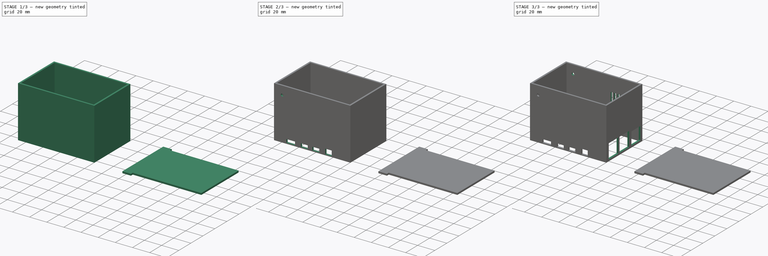
[diagram: build sequence overview — one tinted view per stage of 3, left to right]
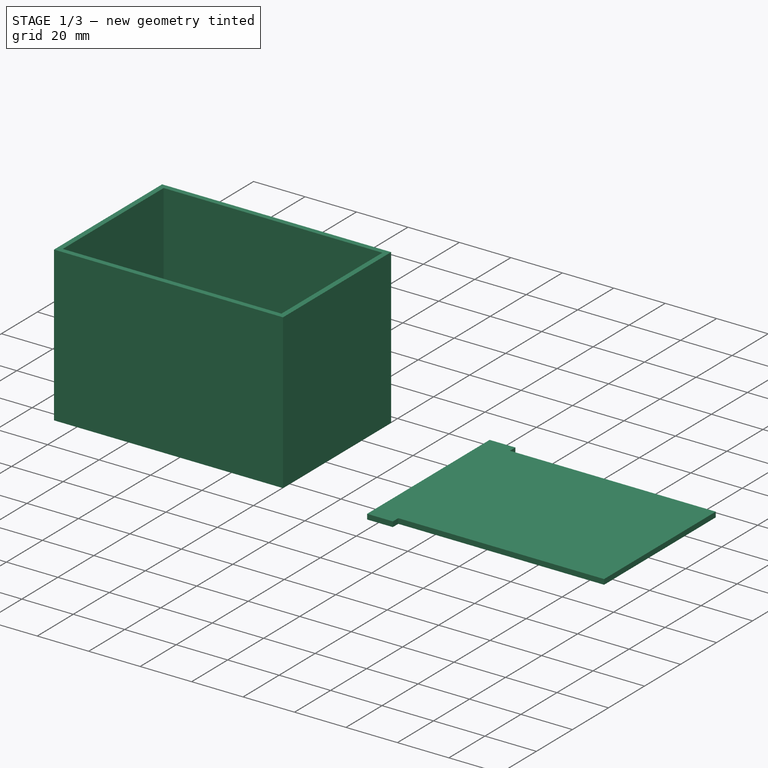
[diagram: stage 1 of 3 — iso view after this stage's code; geometry added in this stage tinted green]
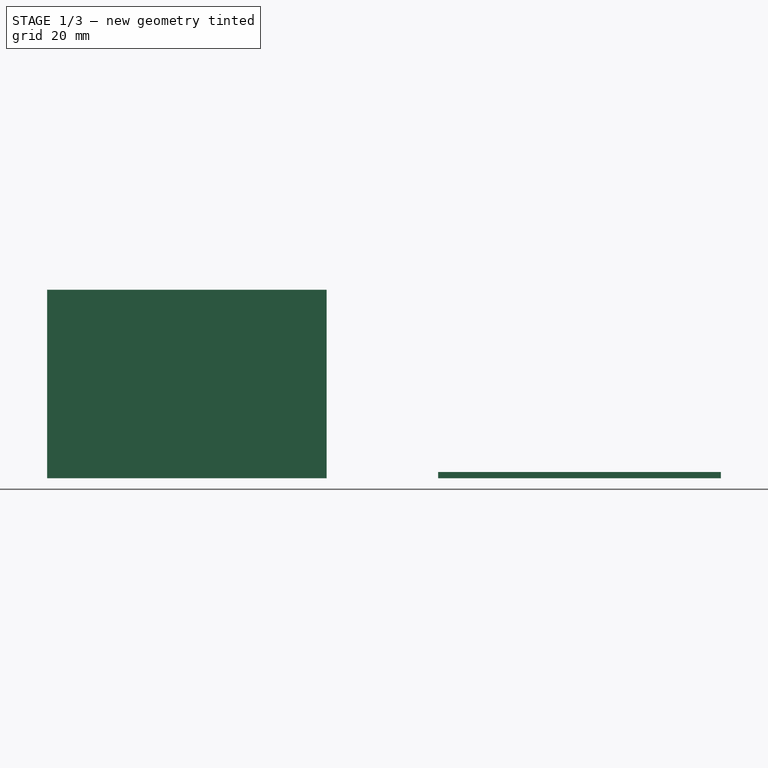
[diagram: stage 1 of 3 — front view after this stage's code; geometry added in this stage tinted green]
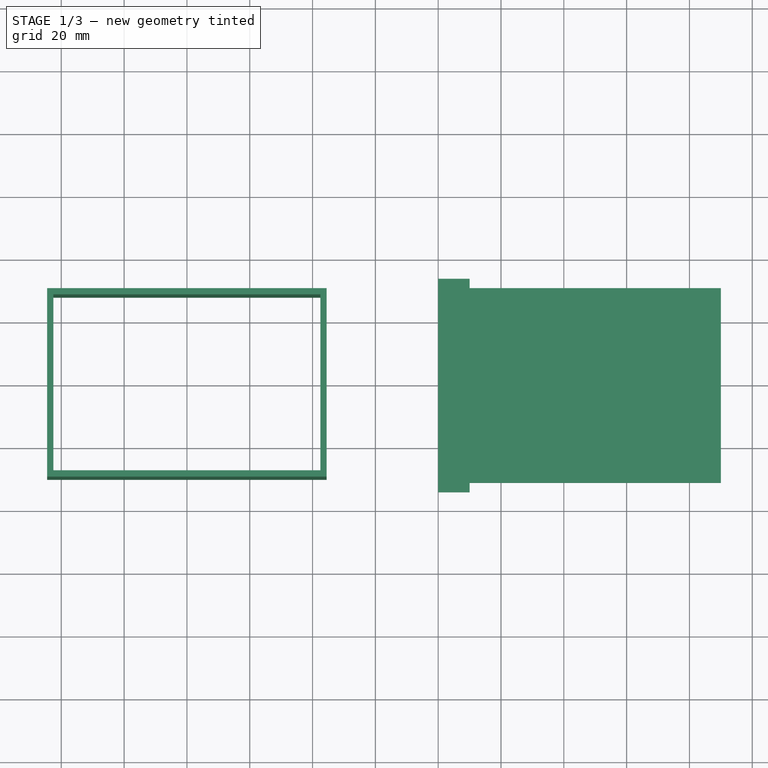
[diagram: stage 1 of 3 — top view after this stage's code; geometry added in this stage tinted green]
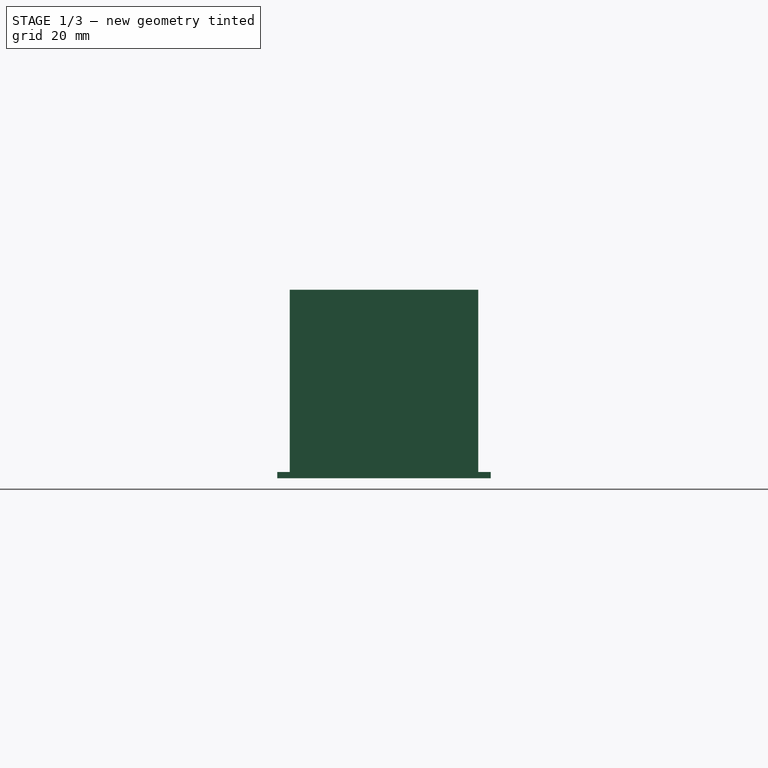
[diagram: stage 1 of 3 — right view after this stage's code; geometry added in this stage tinted green]
FCSTD DOCUMENT  (FreeCAD 0.19R24267 +99 (Git))
Label: case_spi4_v1
License: All rights reserved
LicenseURL: http://en.wikipedia.org/wiki/All_rights_reserved
objects: Sketcher::SketchObject×5, PartDesign::Pocket×3, PartDesign::Pad×2, PartDesign::Body×2
note: 17 computed .brp shape members not serialized (recipe doc carries the construction recipe); baked Part::Feature solids carry a one-line shape summary decoded from their .brp

FEATURE [Sketcher::SketchObject] Sketch  label="Sketch_base"
  FullyConstrained = true
  MapMode = 5
  Support = -> [XY_Plane]
  sketch-geometry (9):
    g0: LineSegment StartX=-42.5 StartY=28 StartZ=0 EndX=42.5 EndY=28 EndZ=0
    g1: LineSegment StartX=42.5 StartY=28 StartZ=0 EndX=42.5 EndY=-28 EndZ=0
    g2: LineSegment StartX=42.5 StartY=-28 StartZ=0 EndX=-42.5 EndY=-28 EndZ=0
    g3: LineSegment StartX=-42.5 StartY=-28 StartZ=0 EndX=-42.5 EndY=28 EndZ=0
    g4: LineSegment StartX=-44.5 StartY=30 StartZ=0 EndX=44.5 EndY=30 EndZ=0
    g5: LineSegment StartX=44.5 StartY=30 StartZ=0 EndX=44.5 EndY=-30 EndZ=0
    g6: LineSegment StartX=44.5 StartY=-30 StartZ=0 EndX=-44.5 EndY=-30 EndZ=0
    g7: LineSegment StartX=-44.5 StartY=-30 StartZ=0 EndX=-44.5 EndY=30 EndZ=0
    g8: GeomPoint X=0 Y=0 Z=0
  constraints (21):
    c: Coincident(g0,g1)
    c: Coincident(g1,g2)
    c: Coincident(g2,g3)
    c: Coincident(g3,g0)
    c: Distance(g1) = 56  'latime'
    c: Distance(g0) = 85  'lungime'
    c: Equal(g0,g2)
    c: Equal(g1,g3)
    c: Coincident(g4,g5)
    c: Coincident(g5,g6)
    c: Coincident(g6,g7)
    c: Coincident(g7,g4)
    c: Horizontal(g6)
    c: Vertical(g7)
    c: DistanceX(g0,g4) = 2  'latime_perete2'
    c: DistanceY(g0,g4) = 2  'latime_perete'
    c: Coincident(g8,g-1)
    c: Symmetric(g0,g0,g-2)
    c: Symmetric(g4,g4,g-2)
    c: Symmetric(g5,g4,g-1)
    c: Symmetric(g0,g1,g-1)
FEATURE [PartDesign::Pad] Pad
  Direction = (1,1,1)
  Length = 60
  Length2 = 100
  Profile = -> Sketch
  Type = 0
FEATURE [PartDesign::Body] Body  label="pereti_carcasa"
  Group = -> [Sketch,Pad,Sketch001,Pocket,Sketch002,Pocket001,Sketch003,Pocket002]
  Origin = -> Origin
  Tip = -> Pocket002
FEATURE [Sketcher::SketchObject] Sketch004
  FullyConstrained = true
  MapMode = 5
  Support = -> [XY_Plane001]
  sketch-geometry (12):
    g0: LineSegment StartX=80 StartY=31 StartZ=0 EndX=170 EndY=31 EndZ=0
    g1: LineSegment StartX=170 StartY=31 StartZ=0 EndX=170 EndY=-31 EndZ=0
    g2: LineSegment StartX=170 StartY=-31 StartZ=0 EndX=80 EndY=-31 EndZ=0
    g3: LineSegment StartX=80 StartY=-31 StartZ=0 EndX=80 EndY=31 EndZ=0
    g4: LineSegment StartX=80 StartY=31 StartZ=0 EndX=90 EndY=31 EndZ=0
    g5: LineSegment StartX=90 StartY=31 StartZ=0 EndX=90 EndY=34 EndZ=0
    g6: LineSegment StartX=90 StartY=34 StartZ=0 EndX=80 EndY=34 EndZ=0
    g7: LineSegment StartX=80 StartY=34 StartZ=0 EndX=80 EndY=31 EndZ=0
    g8: LineSegment StartX=80 StartY=-31 StartZ=0 EndX=90 EndY=-31 EndZ=0
    g9: LineSegment StartX=90 StartY=-31 StartZ=0 EndX=90 EndY=-34 EndZ=0
    g10: LineSegment StartX=90 StartY=-34 StartZ=0 EndX=80 EndY=-34 EndZ=0
    g11: LineSegment StartX=80 StartY=-34 StartZ=0 EndX=80 EndY=-31 EndZ=0
  constraints (31):
    c: Coincident(g0,g1)
    c: Coincident(g1,g2)
    c: Coincident(g2,g3)
    c: Coincident(g3,g0)
    c: Horizontal(g0)
    c: Horizontal(g2)
    c: Vertical(g1)
    c: Distance(g0) = 90  'capac_l'
    c: Distance(g1) = 62  'capac_L'
    c: DistanceX(g-1,g0) = 80
    c: Symmetric(g0,g2,g-1)
    c: Coincident(g4,g5)
    c: Coincident(g5,g6)
    c: Coincident(g6,g7)
    c: Coincident(g7,g4)
    c: Horizontal(g4)
    c: Horizontal(g6)
    c: Vertical(g5)
    c: Vertical(g7)
    c: Coincident(g4,g0)
    c: Distance(g5) = 3
    c: Distance(g6) = 10
    c: Coincident(g8,g9)
    c: Coincident(g9,g10)
    c: Coincident(g10,g11)
    c: Coincident(g11,g8)
    c: Horizontal(g8)
    c: Vertical(g9)
    c: Coincident(g8,g2)
    c: Symmetric(g10,g6,g-1)
    c: Symmetric(g5,g9,g-1)
FEATURE [PartDesign::Pad] Pad001
  Direction = (1,1,1)
  Length = 2
  Length2 = 100
  Profile = -> Sketch004
  Type = 0
FEATURE [PartDesign::Body] Body001  label="lid"
  Group = -> [Sketch004,Pad001]
  Origin = -> Origin001
  Tip = -> Pad001
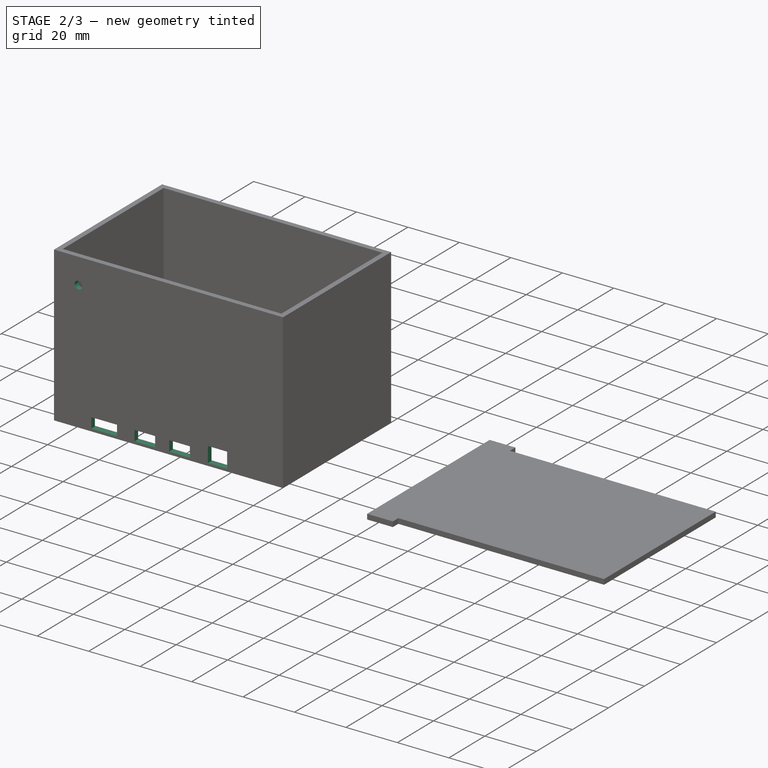
[diagram: stage 2 of 3 — iso view after this stage's code; geometry added in this stage tinted green]
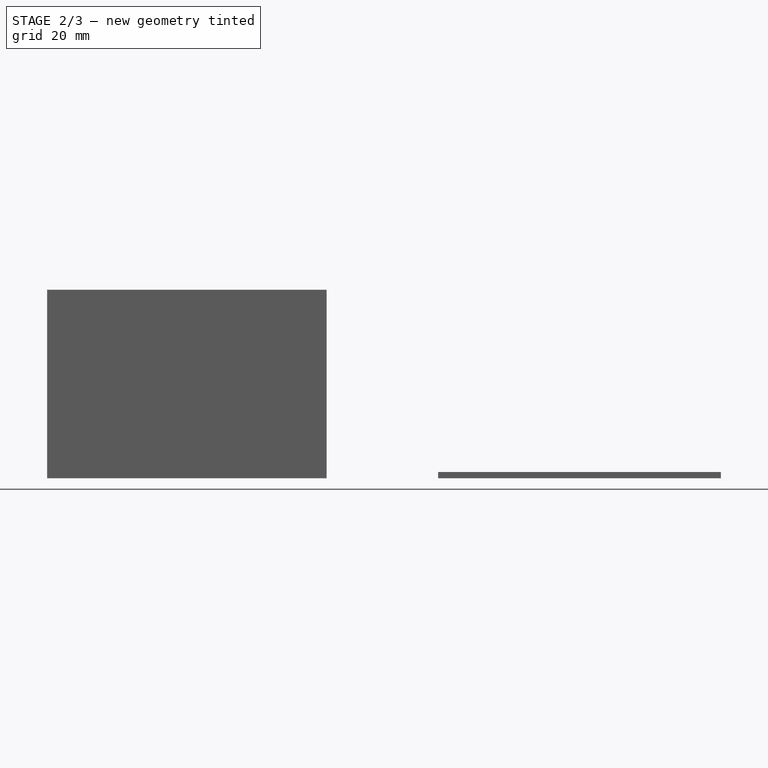
[diagram: stage 2 of 3 — front view after this stage's code; geometry added in this stage tinted green]
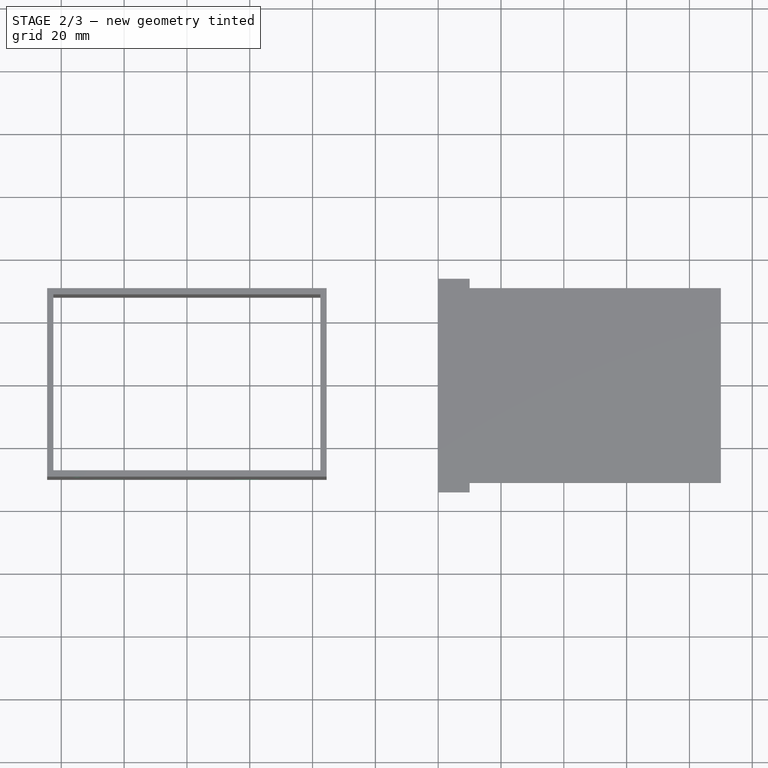
[diagram: stage 2 of 3 — top view after this stage's code; geometry added in this stage tinted green]
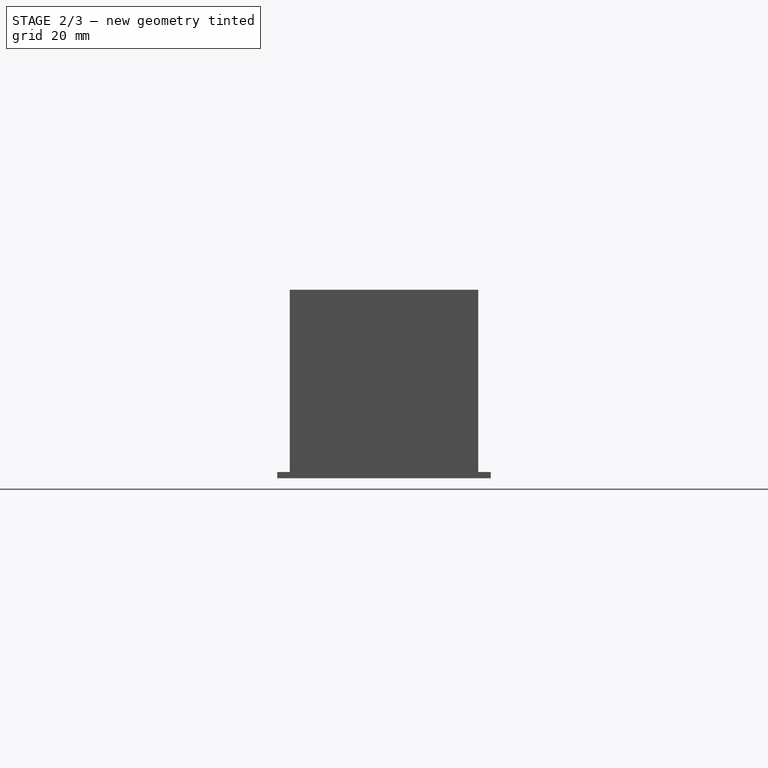
[diagram: stage 2 of 3 — right view after this stage's code; geometry added in this stage tinted green]
FEATURE [Sketcher::SketchObject] Sketch001  label="Sketch_IO"
  FullyConstrained = true
  MapMode = 5
  Placement = pos=(0,-30,0) rot=(1,0,0;1.5708rad)
  Support = -> [Pad]
  sketch-geometry (17):
    g0: LineSegment StartX=-30 StartY=5 StartZ=0 EndX=-20 EndY=5 EndZ=0
    g1: LineSegment StartX=-20 StartY=5 StartZ=0 EndX=-20 EndY=1 EndZ=0
    g2: LineSegment StartX=-20 StartY=1 StartZ=0 EndX=-30 EndY=1 EndZ=0
    g3: LineSegment StartX=-30 StartY=1 StartZ=0 EndX=-30 EndY=5 EndZ=0
    g4: LineSegment StartX=-13.2 StartY=5 StartZ=0 EndX=-5.2 EndY=5 EndZ=0
    g5: LineSegment StartX=-5.2 StartY=5 StartZ=0 EndX=-5.2 EndY=1 EndZ=0
    g6: LineSegment StartX=-5.2 StartY=1 StartZ=0 EndX=-13.2 EndY=1 EndZ=0
    g7: LineSegment StartX=-13.2 StartY=1 StartZ=0 EndX=-13.2 EndY=5 EndZ=0
    g8: LineSegment StartX=0.3 StartY=5 StartZ=0 EndX=8.3 EndY=5 EndZ=0
    g9: LineSegment StartX=8.3 StartY=5 StartZ=0 EndX=8.3 EndY=1 EndZ=0
    g10: LineSegment StartX=8.3 StartY=1 StartZ=0 EndX=0.3 EndY=1 EndZ=0
    g11: LineSegment StartX=0.3 StartY=1 StartZ=0 EndX=0.3 EndY=5 EndZ=0
    g12: LineSegment StartX=15.3 StartY=7 StartZ=0 EndX=22.8 EndY=7 EndZ=0
    g13: LineSegment StartX=22.8 StartY=7 StartZ=0 EndX=22.8 EndY=1 EndZ=0
    g14: LineSegment StartX=22.8 StartY=1 StartZ=0 EndX=15.3 EndY=1 EndZ=0
    g15: LineSegment StartX=15.3 StartY=1 StartZ=0 EndX=15.3 EndY=7 EndZ=0
    g16: Circle CenterX=-35 CenterY=50 CenterZ=0 NormalX=0 NormalY=0 NormalZ=1 AngleXU=0 Radius=1.5
  constraints (51):
    c: Coincident(g0,g1)
    c: Coincident(g1,g2)
    c: Coincident(g2,g3)
    c: Coincident(g3,g0)
    c: Horizontal(g0)
    c: Horizontal(g2)
    c: Vertical(g1)
    c: Vertical(g3)
    c: Coincident(g4,g5)
    c: Coincident(g5,g6)
    c: Coincident(g6,g7)
    c: Coincident(g7,g4)
    c: Horizontal(g4)
    c: Horizontal(g6)
    c: Vertical(g5)
    c: Vertical(g7)
    c: Coincident(g8,g9)
    c: Coincident(g9,g10)
    c: Coincident(g10,g11)
    c: Coincident(g11,g8)
    c: Horizontal(g8)
    c: Horizontal(g10)
    c: Vertical(g9)
    c: Vertical(g11)
    c: Coincident(g12,g13)
    c: Coincident(g13,g14)
    c: Coincident(g14,g15)
    c: Coincident(g15,g12)
    c: Horizontal(g12)
    c: Horizontal(g14)
    c: Vertical(g13)
    c: Vertical(g15)
    c: Distance(g1) = 4
    c: Distance(g5) = 4
    c: Distance(g11) = 4
    c: Distance(g15) = 6
    c: Distance(g4) = 8
    c: Distance(g8) = 8
    c: DistanceX(g4,g8) = 13.5
    c: DistanceX(g0,g4) = 14.8
    c: Distance(g0) = 10
    c: Distance(g12) = 7.5
    c: DistanceX(g8,g12) = 14.5
    c: DistanceY(g1,g6) = 0
    c: DistanceY(g5,g10) = 0
    c: DistanceY(g9,g14) = 0
    c: DistanceY(g-1,g9) = 1  'h_porturi'
    c: Diameter(g16) = 3
    c: DistanceX(g16,g-1) = 35
    c: DistanceY(g-1,g16) = 50
    c: DistanceX(g2,g-1) = 30
FEATURE [PartDesign::Pocket] Pocket
  BaseFeature = -> Pad
  Length = 5
  Length2 = 100
  Profile = -> Sketch001
  Type = 0
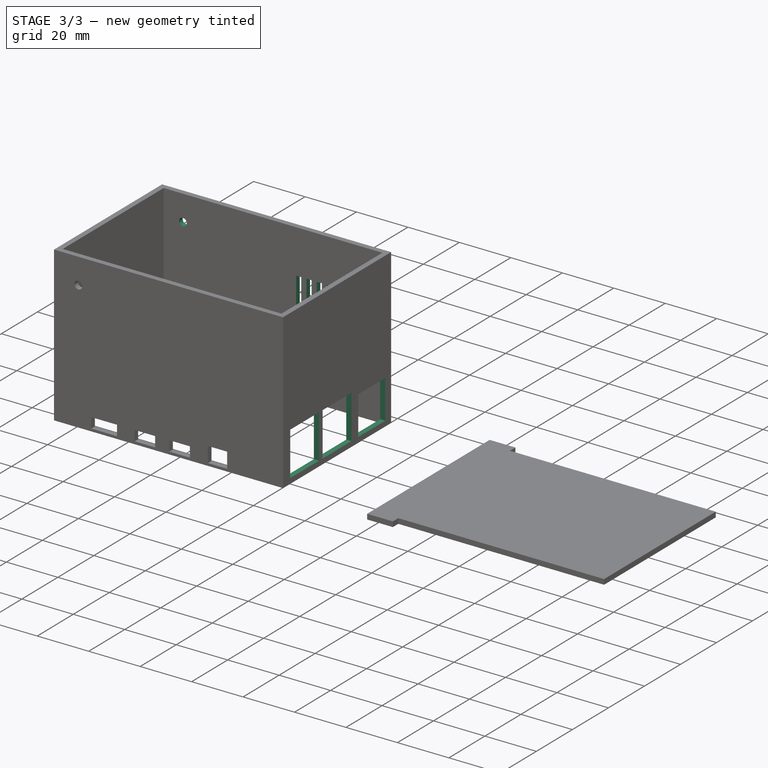
[diagram: stage 3 of 3 — iso view after this stage's code; geometry added in this stage tinted green]
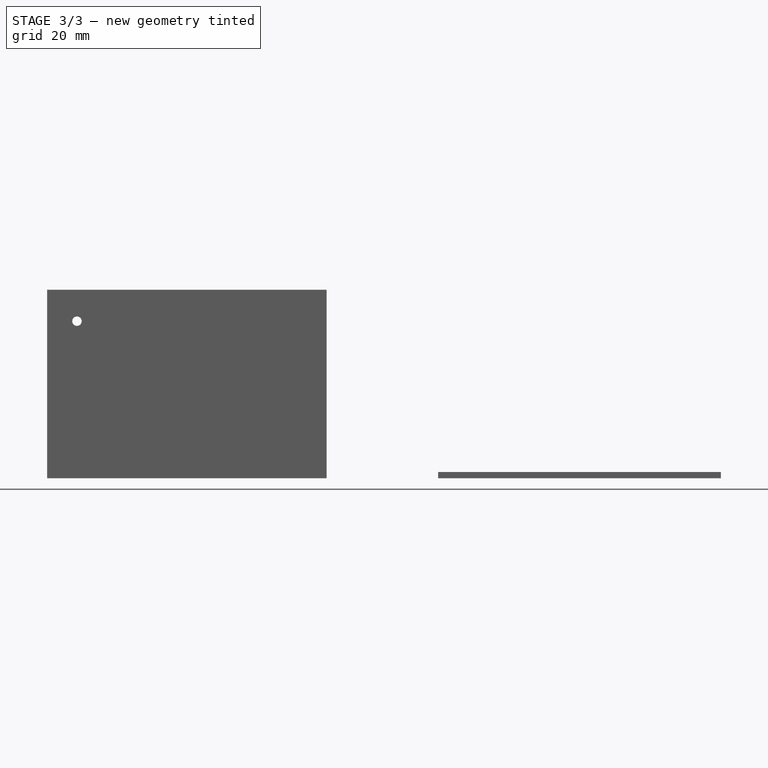
[diagram: stage 3 of 3 — front view after this stage's code; geometry added in this stage tinted green]
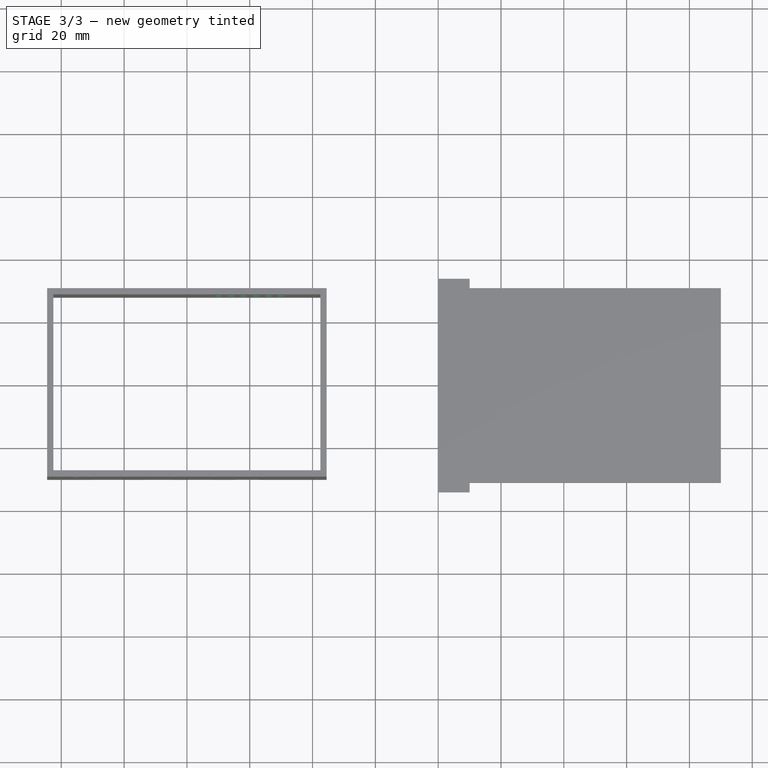
[diagram: stage 3 of 3 — top view after this stage's code; geometry added in this stage tinted green]
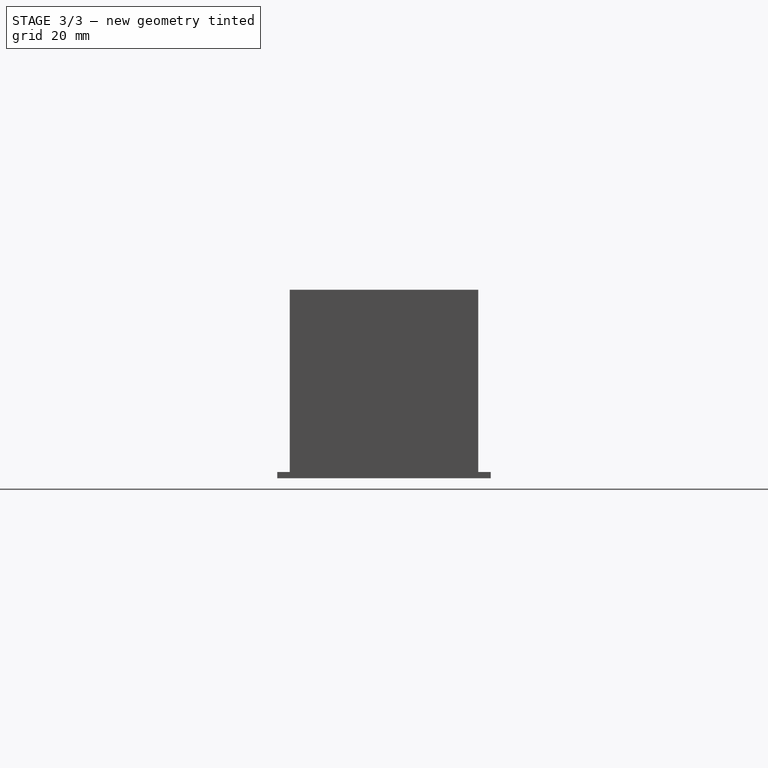
[diagram: stage 3 of 3 — right view after this stage's code; geometry added in this stage tinted green]
FEATURE [Sketcher::SketchObject] Sketch002  label="Sketch_USB"
  FullyConstrained = true
  MapMode = 5
  Placement = pos=(44.5,0,0) rot=(0.57735,0.57735,0.57735;2.0944rad)
  Support = -> [Pocket]
  sketch-geometry (12):
    g0: LineSegment StartX=-26 StartY=19 StartZ=0 EndX=-10 EndY=19 EndZ=0
    g1: LineSegment StartX=-10 StartY=19 StartZ=0 EndX=-10 EndY=2 EndZ=0
    g2: LineSegment StartX=-10 StartY=2 StartZ=0 EndX=-26 EndY=2 EndZ=0
    g3: LineSegment StartX=-26 StartY=2 StartZ=0 EndX=-26 EndY=19 EndZ=0
    g4: LineSegment StartX=-8 StartY=19 StartZ=0 EndX=8 EndY=19 EndZ=0
    g5: LineSegment StartX=8 StartY=19 StartZ=0 EndX=8 EndY=2 EndZ=0
    g6: LineSegment StartX=8 StartY=2 StartZ=0 EndX=-8 EndY=2 EndZ=0
    g7: LineSegment StartX=-8 StartY=2 StartZ=0 EndX=-8 EndY=19 EndZ=0
    g8: LineSegment StartX=11.75 StartY=17 StartZ=0 EndX=26.75 EndY=17 EndZ=0
    g9: LineSegment StartX=26.75 StartY=17 StartZ=0 EndX=26.75 EndY=2 EndZ=0
    g10: LineSegment StartX=26.75 StartY=2 StartZ=0 EndX=11.75 EndY=2 EndZ=0
    g11: LineSegment StartX=11.75 StartY=2 StartZ=0 EndX=11.75 EndY=17 EndZ=0
  constraints (36):
    c: Coincident(g0,g1)
    c: Coincident(g1,g2)
    c: Coincident(g2,g3)
    c: Coincident(g3,g0)
    c: Horizontal(g0)
    c: Horizontal(g2)
    c: Vertical(g1)
    c: Vertical(g3)
    c: Coincident(g4,g5)
    c: Coincident(g5,g6)
    c: Coincident(g6,g7)
    c: Coincident(g7,g4)
    c: Horizontal(g4)
    c: Horizontal(g6)
    c: Vertical(g5)
    c: Vertical(g7)
    c: Coincident(g8,g9)
    c: Coincident(g9,g10)
    c: Coincident(g10,g11)
    c: Coincident(g11,g8)
    c: Horizontal(g8)
    c: Horizontal(g10)
    c: Vertical(g9)
    c: Vertical(g11)
    c: DistanceY(g5,g10) = 0
    c: DistanceY(g1,g6) = 0
    c: Distance(g9) = 15
    c: Distance(g8) = 15
    c: Equal(g1,g7)
    c: Distance(g3) = 17  'USB_h'
    c: Equal(g4,g0)
    c: Distance(g0) = 16  'USB_l'
    c: DistanceX(g0,g4) = 18
    c: DistanceX(g4,g8) = 18.75
    c: DistanceX(g-1,g5) = 8
    c: DistanceY(g-1,g5) = 2
FEATURE [PartDesign::Pocket] Pocket001
  BaseFeature = -> Pocket
  Length = 5
  Length2 = 100
  Profile = -> Sketch002
  Type = 0
FEATURE [Sketcher::SketchObject] Sketch003  label="Sketch_vents"
  FullyConstrained = true
  MapMode = 5
  Placement = pos=(0,30,0) rot=(0,0.707107,0.707107;3.14159rad)
  Support = -> [Pocket001]
  sketch-geometry (34):
    g0: LineSegment StartX=-35 StartY=47 StartZ=0 EndX=-5 EndY=47 EndZ=0
    g1: LineSegment StartX=-5 StartY=47 StartZ=0 EndX=-5 EndY=17 EndZ=0
    g2: LineSegment StartX=-5 StartY=17 StartZ=0 EndX=-35 EndY=17 EndZ=0
    g3: LineSegment StartX=-35 StartY=17 StartZ=0 EndX=-35 EndY=47 EndZ=0
    g4: LineSegment StartX=-31 StartY=43 StartZ=0 EndX=-29 EndY=43 EndZ=0
    g5: LineSegment StartX=-29 StartY=43 StartZ=0 EndX=-29 EndY=21 EndZ=0
    g6: LineSegment StartX=-29 StartY=21 StartZ=0 EndX=-31 EndY=21 EndZ=0
    g7: LineSegment StartX=-31 StartY=21 StartZ=0 EndX=-31 EndY=43 EndZ=0
    g8: LineSegment StartX=-27 StartY=43 StartZ=0 EndX=-25 EndY=43 EndZ=0
    g9: LineSegment StartX=-25 StartY=43 StartZ=0 EndX=-25 EndY=21 EndZ=0
    g10: LineSegment StartX=-25 StartY=21 StartZ=0 EndX=-27 EndY=21 EndZ=0
    g11: LineSegment StartX=-27 StartY=21 StartZ=0 EndX=-27 EndY=43 EndZ=0
    g12: LineSegment StartX=-23 StartY=43 StartZ=0 EndX=-21 EndY=43 EndZ=0
    g13: LineSegment StartX=-21 StartY=43 StartZ=0 EndX=-21 EndY=21 EndZ=0
    g14: LineSegment StartX=-21 StartY=21 StartZ=0 EndX=-23 EndY=21 EndZ=0
    g15: LineSegment StartX=-23 StartY=21 StartZ=0 EndX=-23 EndY=43 EndZ=0
    g16: LineSegment StartX=-19 StartY=43 StartZ=0 EndX=-17 EndY=43 EndZ=0
    g17: LineSegment StartX=-17 StartY=43 StartZ=0 EndX=-17 EndY=21 EndZ=0
    g18: LineSegment StartX=-17 StartY=21 StartZ=0 EndX=-19 EndY=21 EndZ=0
    g19: LineSegment StartX=-19 StartY=21 StartZ=0 EndX=-19 EndY=43 EndZ=0
    g20: LineSegment StartX=-15 StartY=43 StartZ=0 EndX=-13 EndY=43 EndZ=0
    g21: LineSegment StartX=-13 StartY=43 StartZ=0 EndX=-13 EndY=21 EndZ=0
    g22: LineSegment StartX=-13 StartY=21 StartZ=0 EndX=-15 EndY=21 EndZ=0
    g23: LineSegment StartX=-15 StartY=21 StartZ=0 EndX=-15 EndY=43 EndZ=0
    g24: LineSegment StartX=-11 StartY=43 StartZ=0 EndX=-9 EndY=43 EndZ=0
    g25: LineSegment StartX=-9 StartY=43 StartZ=0 EndX=-9 EndY=21 EndZ=0
    g26: LineSegment StartX=-9 StartY=21 StartZ=0 EndX=-11 EndY=21 EndZ=0
    g27: LineSegment StartX=-11 StartY=21 StartZ=0 EndX=-11 EndY=43 EndZ=0
    g28: LineSegment StartX=-25 StartY=43 StartZ=0 EndX=-23 EndY=43 EndZ=0
    g29: LineSegment StartX=-29 StartY=43 StartZ=0 EndX=-27 EndY=43 EndZ=0
    g30: LineSegment StartX=-21 StartY=43 StartZ=0 EndX=-19 EndY=43 EndZ=0
    g31: LineSegment StartX=-17 StartY=43 StartZ=0 EndX=-15 EndY=43 EndZ=0
    g32: LineSegment StartX=-13 StartY=43 StartZ=0 EndX=-11 EndY=43 EndZ=0
    g33: Circle CenterX=35 CenterY=50 CenterZ=0 NormalX=0 NormalY=0 NormalZ=1 AngleXU=0 Radius=1.5
  constraints (97):
    c: Coincident(g0,g1)
    c: Coincident(g1,g2)
    c: Coincident(g2,g3)
    c: Coincident(g3,g0)
    c: Horizontal(g0)
    c: Horizontal(g2)
    c: Vertical(g1)
    c: Vertical(g3)
    c: Distance(g1) = 30
    c: Distance(g0) = 30
    c: Coincident(g4,g5)
    c: Coincident(g5,g6)
    c: Coincident(g6,g7)
    c: Coincident(g7,g4)
    c: Horizontal(g4)
    c: Horizontal(g6)
    c: Vertical(g5)
    c: Vertical(g7)
    c: Distance(g4) = 2
    c: Distance(g5) = 22
    c: Coincident(g8,g9)
    c: Coincident(g9,g10)
    c: Coincident(g10,g11)
    c: Coincident(g11,g8)
    c: Horizontal(g8)
    c: Horizontal(g10)
    c: Vertical(g9)
    c: Vertical(g11)
    c: Equal(g4,g8) = 2
    c: Equal(g5,g9) = 14
    c: Coincident(g12,g13)
    c: Coincident(g13,g14)
    c: Coincident(g14,g15)
    c: Coincident(g15,g12)
    c: Horizontal(g12)
    c: Horizontal(g14)
    c: Vertical(g13)
    c: Vertical(g15)
    c: Equal(g4,g12) = 2
    c: Equal(g5,g13) = 14
    c: Coincident(g16,g17)
    c: Coincident(g17,g18)
    c: Coincident(g18,g19)
    c: Coincident(g19,g16)
    c: Horizontal(g16)
    c: Horizontal(g18)
    c: Vertical(g17)
    c: Vertical(g19)
    c: Equal(g4,g16) = 2
    c: Equal(g5,g17) = 14
    c: Coincident(g20,g21)
    c: Coincident(g21,g22)
    c: Coincident(g22,g23)
    c: Coincident(g23,g20)
    c: Horizontal(g20)
    c: Horizontal(g22)
    c: Vertical(g21)
    c: Vertical(g23)
    c: Equal(g4,g20) = 2
    c: Equal(g5,g21) = 14
    c: Coincident(g24,g25)
    c: Coincident(g25,g26)
    c: Coincident(g26,g27)
    c: Coincident(g27,g24)
    c: Horizontal(g24)
    c: Horizontal(g26)
    c: Vertical(g25)
    c: Vertical(g27)
    c: Equal(g4,g24) = 2
    c: Equal(g5,g25) = 14
    c: DistanceY(g5,g10) = 0
    c: DistanceY(g9,g14) = 0
    c: DistanceY(g13,g18) = 0
    c: DistanceY(g22,g17) = 0
    c: DistanceY(g21,g26) = 0
    c: DistanceX(g4,g8) = 2
    c: Coincident(g28,g8)
    c: Coincident(g28,g12)
    c: Coincident(g29,g4)
    c: Coincident(g29,g8)
    c: Coincident(g30,g12)
    c: Coincident(g30,g16)
    c: Coincident(g31,g16)
    c: Coincident(g31,g20)
    c: Coincident(g32,g20)
    c: Coincident(g32,g24)
    c: Equal(g29,g28)
    c: Equal(g28,g30)
    c: Equal(g30,g31)
    c: Equal(g31,g32)
    c: DistanceY(g-1,g1) = 17
    c: DistanceX(g1,g-1) = 5
    c: DistanceY(g4,g0) = 4
    c: DistanceX(g0,g4) = 4
    c: DistanceY(g-1,g33) = 50
    c: DistanceX(g-1,g33) = 35
    c: Diameter(g33) = 3
FEATURE [PartDesign::Pocket] Pocket002
  BaseFeature = -> Pocket001
  Length = 5
  Length2 = 100
  Profile = -> Sketch003
  Type = 0
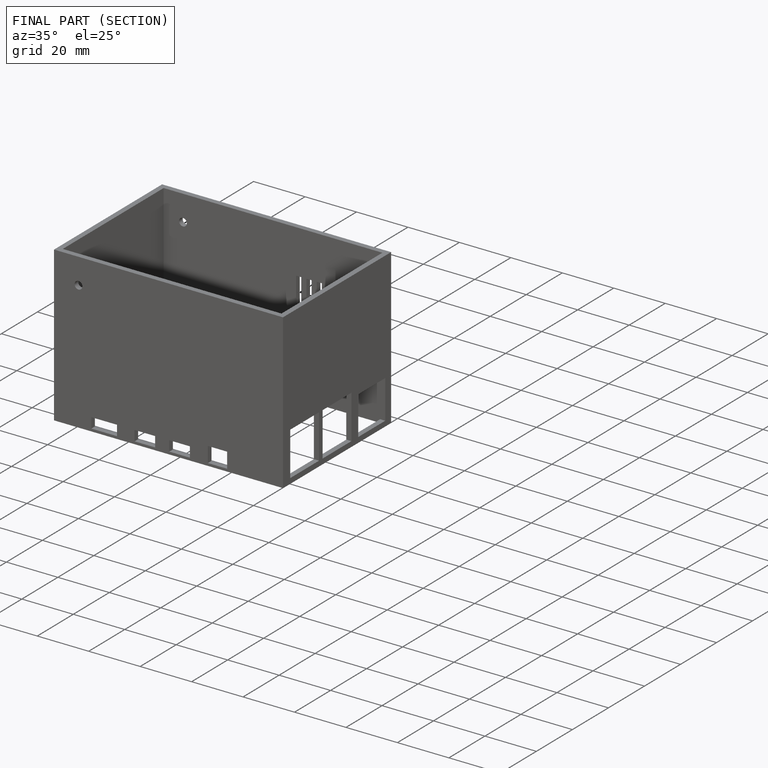
[diagram: finished part — half-section view (interior)]
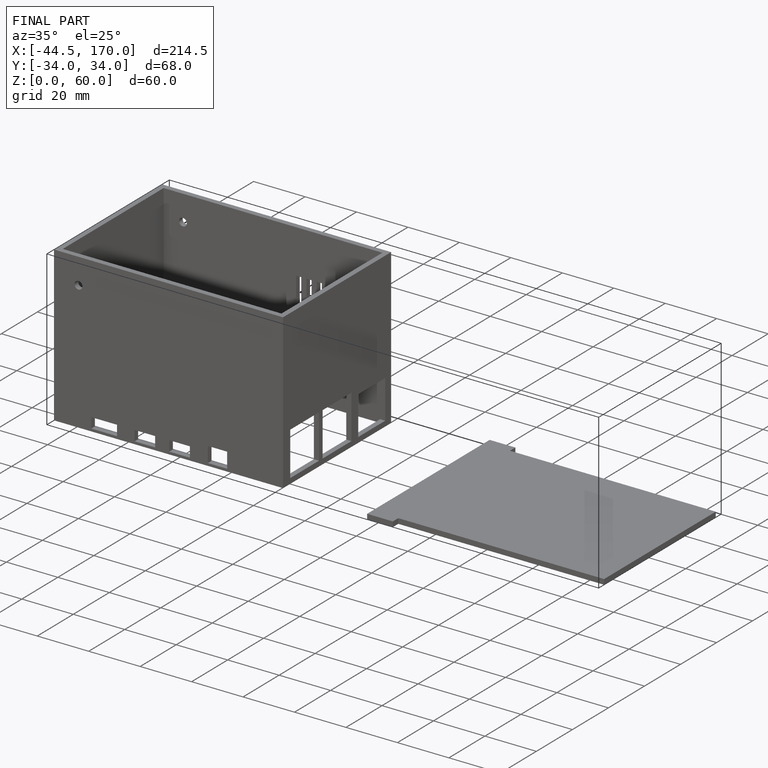
[diagram: finished part — iso view with bounding-box wireframe]
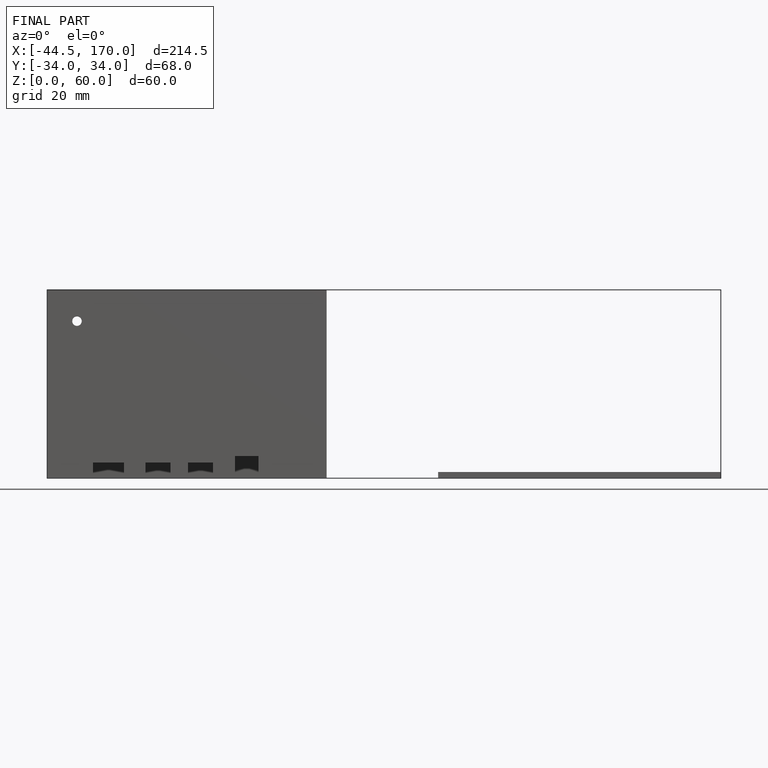
[diagram: finished part — front view with bounding-box wireframe]
